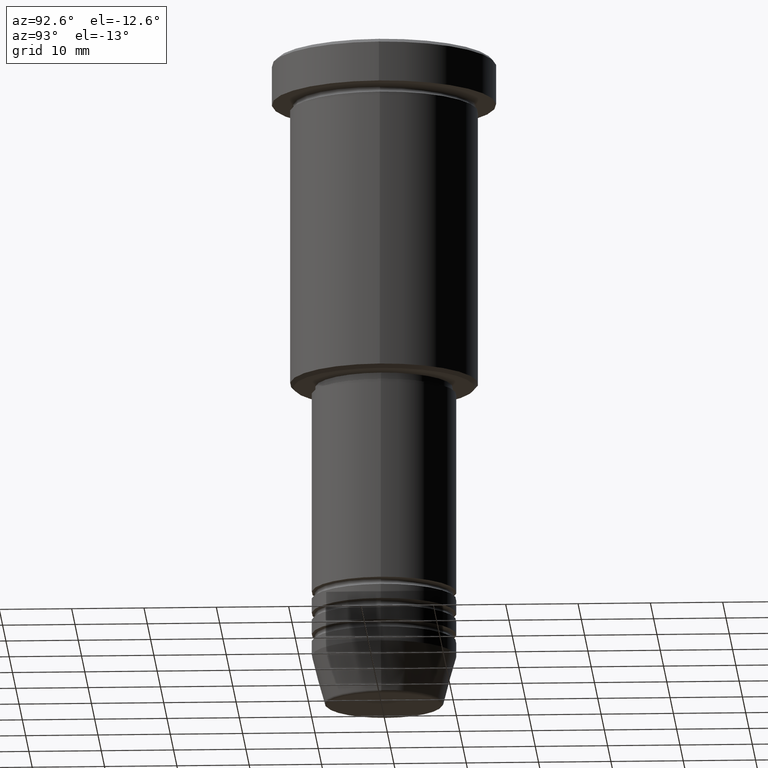
[diagram: clean part render]
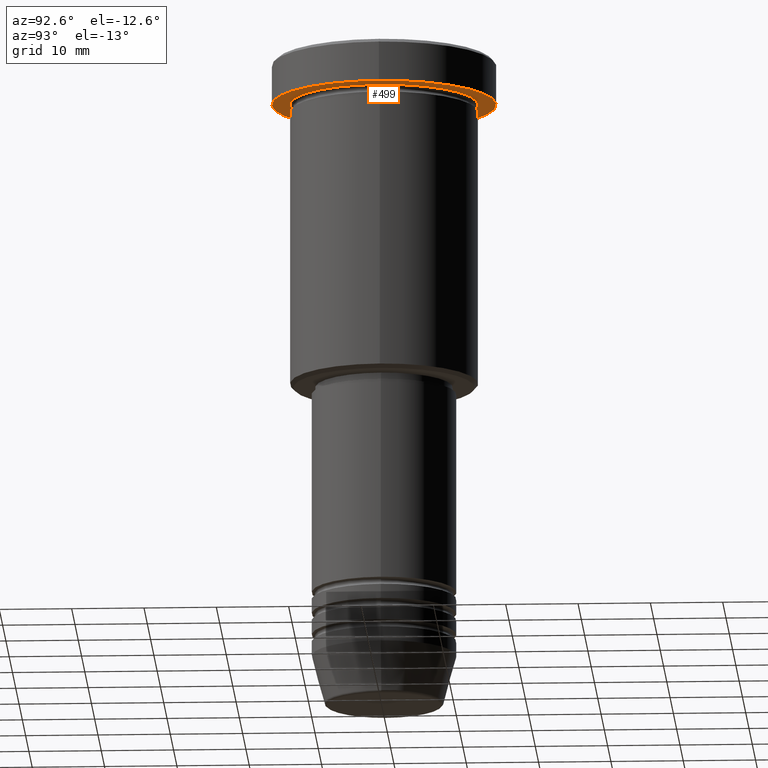
[diagram: same view with one face highlighted and labeled with its STEP entity id]
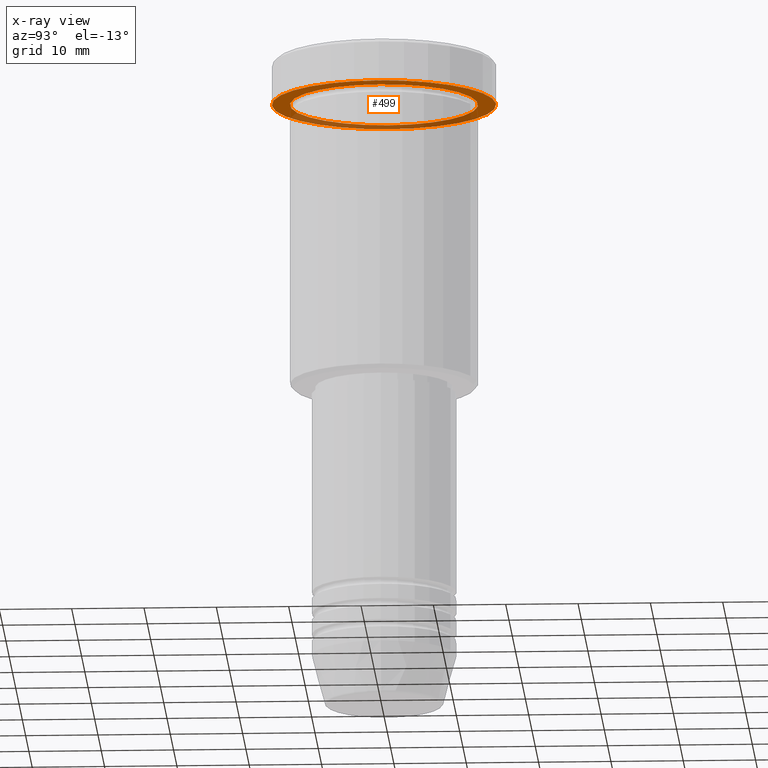
[diagram: x-ray of the same camera — body ghosted, the highlighted face saturated]
A machine part, auxiliary view. The second image highlights one B-rep face of the part: STEP entity #499.
The next image is the same camera in x-ray: the body ghosted, the highlighted face saturated — about 34% of this face is hidden behind the body in this view.
In plain terms, the highlighted planar face has unit normal (0, 0, -1).
Its self-contained STEP definition (entity closure, byte-faithful):
#36 = ORIENTED_EDGE ( 'NONE', *, *, #238, .T. ) ;
#48 = EDGE_CURVE ( 'NONE', #156, #1002, #356, .T. ) ;
#97 = ORIENTED_EDGE ( 'NONE', *, *, #48, .T. ) ;
#122 = DIRECTION ( 'NONE',  ( 1.000000000000000000, 0.000000000000000000, 0.000000000000000000 ) ) ;
#134 = ORIENTED_EDGE ( 'NONE', *, *, #655, .F. ) ;
#140 = VERTEX_POINT ( 'NONE', #1028 ) ;
#156 = VERTEX_POINT ( 'NONE', #869 ) ;
#163 = AXIS2_PLACEMENT_3D ( 'NONE', #477, #460, #170 ) ;
#170 = DIRECTION ( 'NONE',  ( -1.000000000000000000, 0.000000000000000000, 0.000000000000000000 ) ) ;
#229 = EDGE_LOOP ( 'NONE', ( #134, #529 ) ) ;
#232 = CARTESIAN_POINT ( 'NONE',  ( -15.50000000000000000, 1.898202538678397557E-15, -5.999999999999995559 ) ) ;
#238 = EDGE_CURVE ( 'NONE', #1002, #156, #300, .T. ) ;
#253 = DIRECTION ( 'NONE',  ( -0.000000000000000000, -0.000000000000000000, 1.000000000000000000 ) ) ;
#270 = FACE_OUTER_BOUND ( 'NONE', #229, .T. ) ;
#275 = EDGE_CURVE ( 'NONE', #674, #140, #1080, .T. ) ;
#300 = CIRCLE ( 'NONE', #412, 13.00000000000000000 ) ;
#356 = CIRCLE ( 'NONE', #163, 13.00000000000000000 ) ;
#363 = EDGE_LOOP ( 'NONE', ( #36, #97 ) ) ;
#412 = AXIS2_PLACEMENT_3D ( 'NONE', #574, #491, #1041 ) ;
#449 = AXIS2_PLACEMENT_3D ( 'NONE', #451, #1181, #724 ) ;
#451 = CARTESIAN_POINT ( 'NONE',  ( 0.000000000000000000, 15.50000000000000000, -5.999999999999995559 ) ) ;
#460 = DIRECTION ( 'NONE',  ( -0.000000000000000000, -0.000000000000000000, 1.000000000000000000 ) ) ;
#477 = CARTESIAN_POINT ( 'NONE',  ( 0.000000000000000000, 0.000000000000000000, -5.999999999999995559 ) ) ;
#491 = DIRECTION ( 'NONE',  ( -0.000000000000000000, -0.000000000000000000, 1.000000000000000000 ) ) ;
#499 = ADVANCED_FACE ( 'NONE', ( #563, #270 ), #809, .T. ) ;
#529 = ORIENTED_EDGE ( 'NONE', *, *, #275, .F. ) ;
#563 = FACE_BOUND ( 'NONE', #363, .T. ) ;
#574 = CARTESIAN_POINT ( 'NONE',  ( 0.000000000000000000, 0.000000000000000000, -5.999999999999995559 ) ) ;
#582 = AXIS2_PLACEMENT_3D ( 'NONE', #1170, #253, #785 ) ;
#605 = CIRCLE ( 'NONE', #635, 15.50000000000000000 ) ;
#635 = AXIS2_PLACEMENT_3D ( 'NONE', #933, #764, #122 ) ;
#655 = EDGE_CURVE ( 'NONE', #140, #674, #605, .T. ) ;
#674 = VERTEX_POINT ( 'NONE', #232 ) ;
#724 = DIRECTION ( 'NONE',  ( -1.000000000000000000, 0.000000000000000000, -0.000000000000000000 ) ) ;
#764 = DIRECTION ( 'NONE',  ( -0.000000000000000000, -0.000000000000000000, 1.000000000000000000 ) ) ;
#785 = DIRECTION ( 'NONE',  ( 1.000000000000000000, 0.000000000000000000, 0.000000000000000000 ) ) ;
#809 = PLANE ( 'NONE',  #449 ) ;
#869 = CARTESIAN_POINT ( 'NONE',  ( 13.00000000000000000, 1.592040838891559095E-15, -5.999999999999994671 ) ) ;
#924 = CARTESIAN_POINT ( 'NONE',  ( -13.00000000000000000, 0.000000000000000000, -5.999999999999994671 ) ) ;
#933 = CARTESIAN_POINT ( 'NONE',  ( 0.000000000000000000, 0.000000000000000000, -5.999999999999995559 ) ) ;
#1002 = VERTEX_POINT ( 'NONE', #924 ) ;
#1028 = CARTESIAN_POINT ( 'NONE',  ( 15.50000000000000000, 0.000000000000000000, -5.999999999999995559 ) ) ;
#1041 = DIRECTION ( 'NONE',  ( -1.000000000000000000, 0.000000000000000000, 0.000000000000000000 ) ) ;
#1080 = CIRCLE ( 'NONE', #582, 15.50000000000000000 ) ;
#1170 = CARTESIAN_POINT ( 'NONE',  ( 0.000000000000000000, 0.000000000000000000, -5.999999999999995559 ) ) ;
#1181 = DIRECTION ( 'NONE',  ( 0.000000000000000000, 0.000000000000000000, -1.000000000000000000 ) ) ;